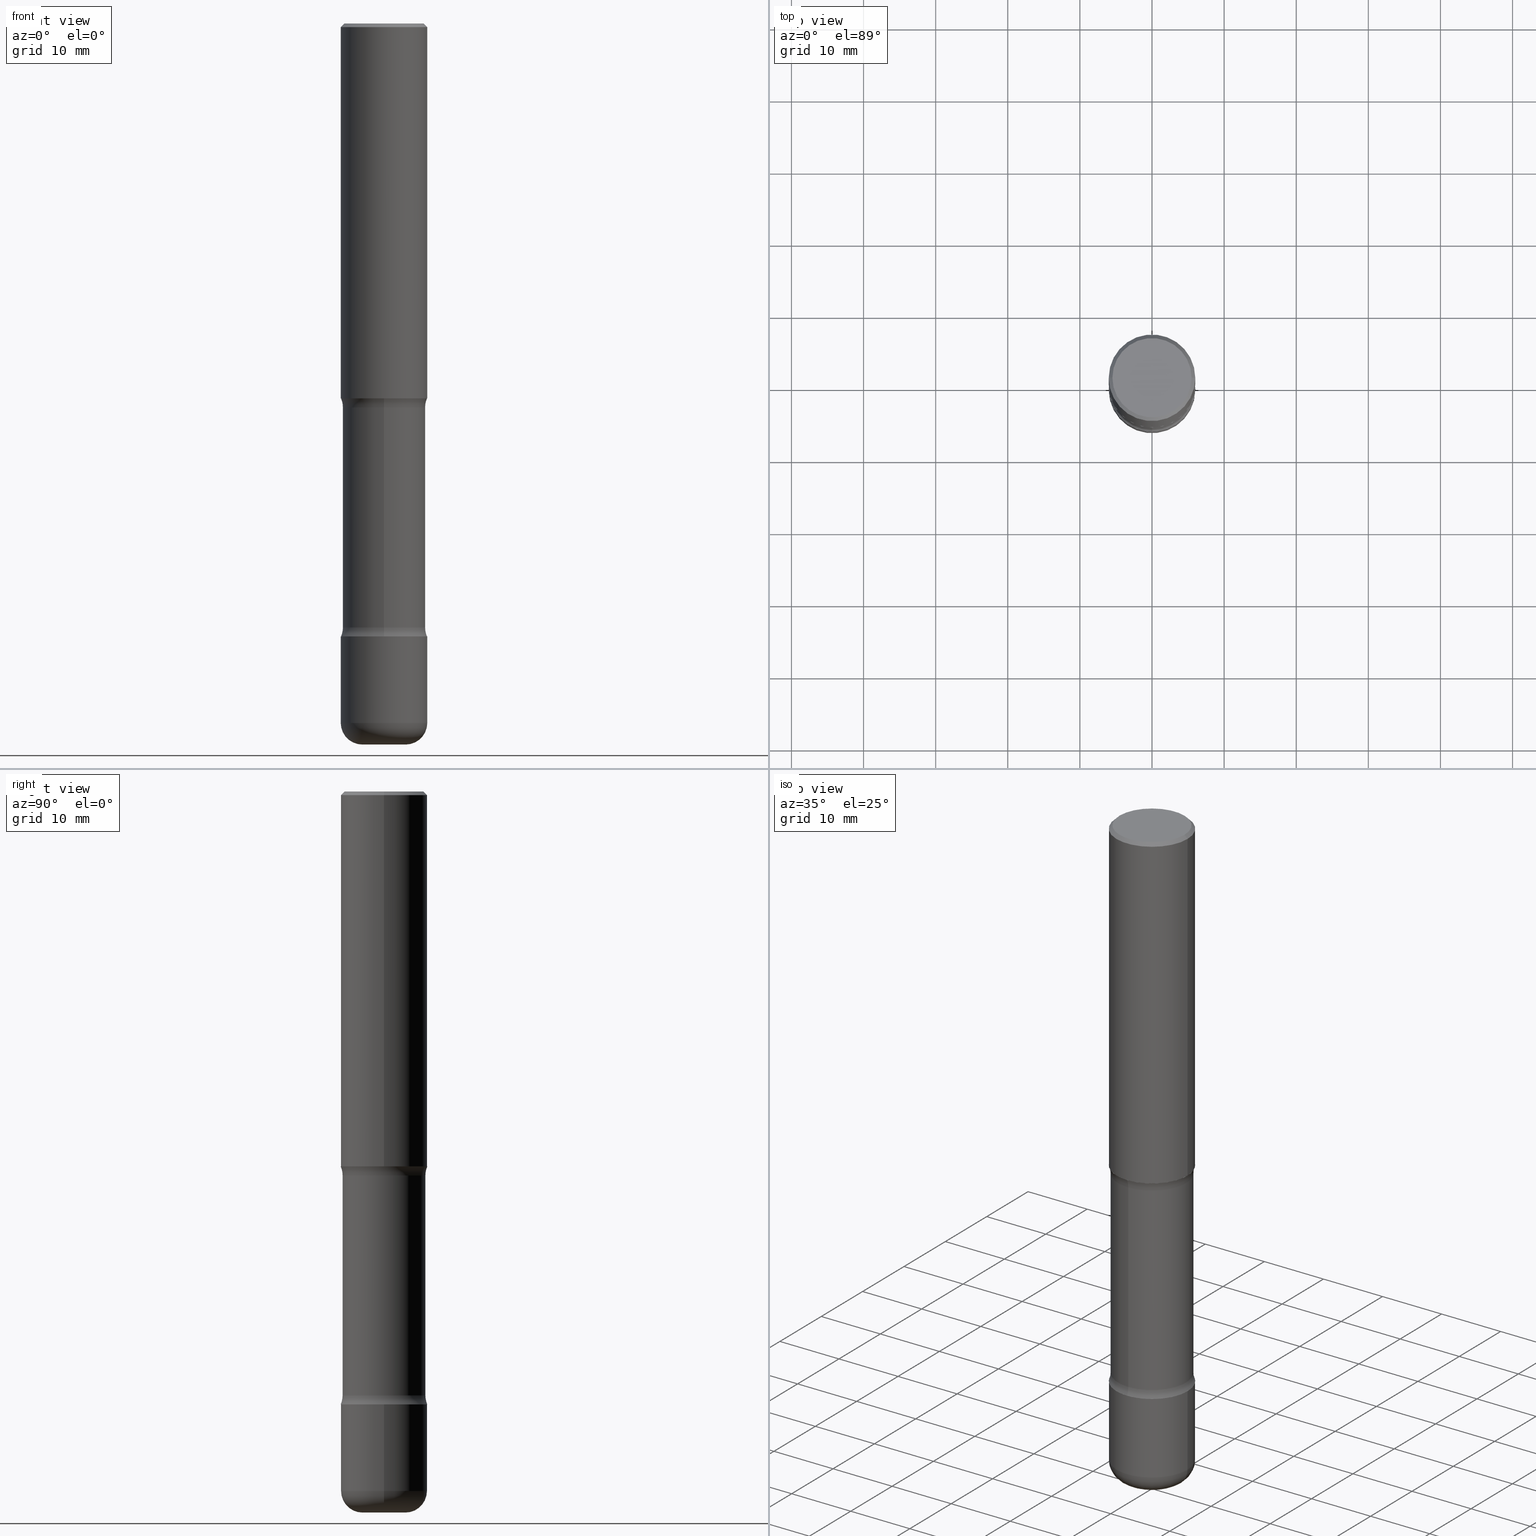
[diagram: canonical four-view strip — front | top / right | iso, engineering-drawing reading convention]
A machine part, canonical four-view strip (front | top / right | iso — engineering-drawing reading convention). The complete STEP part file that produces these views, byte-faithful:
ISO-10303-21;
HEADER;
FILE_DESCRIPTION (( 'STEP AP203' ),
    '1' );
FILE_NAME ('46931.STEP',
    '2024-03-02T05:56:28',
    ( '' ),
    ( '' ),
    'SwSTEP 2.0',
    'SolidWorks 2023',
    '' );
FILE_SCHEMA (( 'CONFIG_CONTROL_DESIGN' ));
ENDSEC;

DATA;
#1 = DIRECTION ( 'NONE',  ( -1.000000000000000000, 7.105427357601005014E-15, 0.000000000000000000 ) ) ;
#2 = ORIENTED_EDGE ( 'NONE', *, *, #386, .T. ) ;
#3 = EDGE_CURVE ( 'NONE', #112, #198, #415, .T. ) ;
#4 = DIRECTION ( 'NONE',  ( 2.207249558311628199E-29, -3.832624860395576133E-15, -1.000000000000000000 ) ) ;
#5 = ORIENTED_EDGE ( 'NONE', *, *, #257, .F. ) ;
#6 = CIRCLE ( 'NONE', #261, 0.2259999999999994236 ) ;
#7 = CIRCLE ( 'NONE', #188, 0.2362000000000005484 ) ;
#8 = LOCAL_TIME ( 0, 56, 28.00000000000000000, #509 ) ;
#9 = DIRECTION ( 'NONE',  ( 6.982962677686265922E-15, 1.000000000000000000, -3.469747663417777397E-15 ) ) ;
#10 = DIRECTION ( 'NONE',  ( -2.445468806185136597E-29, 3.491481338843145583E-15, 1.000000000000000000 ) ) ;
#11 = EDGE_CURVE ( 'NONE', #421, #22, #177, .T. ) ;
#12 = DIRECTION ( 'NONE',  ( -2.445468806185136597E-29, 3.491481338843145583E-15, 1.000000000000000000 ) ) ;
#13 = CARTESIAN_POINT ( 'NONE',  ( -2.408034797217727156E-15, -0.3510000000000115805, -3.296943352317405651 ) ) ;
#14 = CARTESIAN_POINT ( 'NONE',  ( 1.649375784469548787E-15, 0.2361999999999932764, -2.047200000000000575 ) ) ;
#15 = CARTESIAN_POINT ( 'NONE',  ( 9.487118402156788789E-29, -1.394744139485432957E-14, -3.937000000000000277 ) ) ;
#16 = ADVANCED_FACE ( 'NONE', ( #345 ), #205, .F. ) ;
#17 = CIRCLE ( 'NONE', #51, 0.2362000000000004096 ) ;
#18 = CIRCLE ( 'NONE', #360, 0.2362000000000005484 ) ;
#19 = CARTESIAN_POINT ( 'NONE',  ( 0.2362000000000004096, -1.333326893677419946E-14, -3.346399999999999597 ) ) ;
#20 = CARTESIAN_POINT ( 'NONE',  ( -1.620449627073556981E-15, -0.2362000000000121225, -3.346399999999999153 ) ) ;
#21 = EDGE_CURVE ( 'NONE', #90, #155, #113, .T. ) ;
#22 = VERTEX_POINT ( 'NONE', #339 ) ;
#23 = VECTOR ( 'NONE', #264, 39.37007874015748143 ) ;
#24 = CYLINDRICAL_SURFACE ( 'NONE', #53, 0.2362000000000004651 ) ;
#25 = CIRCLE ( 'NONE', #474, 0.2362000000000005207 ) ;
#26 = VERTEX_POINT ( 'NONE', #518 ) ;
#27 = EDGE_CURVE ( 'NONE', #496, #161, #419, .T. ) ;
#28 = ORIENTED_EDGE ( 'NONE', *, *, #192, .F. ) ;
#29 = EDGE_LOOP ( 'NONE', ( #68, #516, #200, #248 ) ) ;
#30 = CALENDAR_DATE ( 2024, 2, 3 ) ;
#31 = EDGE_CURVE ( 'NONE', #322, #159, #130, .T. ) ;
#32 = VERTEX_POINT ( 'NONE', #95 ) ;
#33 = CLOSED_SHELL ( 'NONE', ( #536, #100, #254, #477, #473, #531, #294, #522 ) ) ;
#34 = AXIS2_PLACEMENT_3D ( 'NONE', #553, #233, #35 ) ;
#35 = DIRECTION ( 'NONE',  ( 1.000000000000000000, 0.000000000000000000, 0.000000000000000000 ) ) ;
#36 = DIRECTION ( 'NONE',  ( 6.982962677686265922E-15, 1.000000000000000000, -3.832624860395576133E-15 ) ) ;
#37 = VERTEX_POINT ( 'NONE', #312 ) ;
#38 = PERSON_AND_ORGANIZATION_ROLE ( 'design_supplier' ) ;
#39 = CARTESIAN_POINT ( 'NONE',  ( 0.2362000000000002709, -1.690279253850500743E-15, -0.02000000000000006981 ) ) ;
#40 = ORIENTED_EDGE ( 'NONE', *, *, #448, .T. ) ;
#41 = APPROVAL_DATE_TIME ( #420, #395 ) ;
#42 = DIRECTION ( 'NONE',  ( 1.000000000000000000, -6.982962677686266711E-15, 4.876176775795935232E-29 ) ) ;
#43 = ORIENTED_EDGE ( 'NONE', *, *, #108, .T. ) ;
#44 = PERSON_AND_ORGANIZATION ( #467, #465 ) ;
#45 = CONICAL_SURFACE ( 'NONE', #289, 0.2362000000000002709, 0.7853981633974477239 ) ;
#46 = AXIS2_PLACEMENT_3D ( 'NONE', #468, #12, #42 ) ;
#47 = FACE_OUTER_BOUND ( 'NONE', #508, .T. ) ;
#48 = EDGE_LOOP ( 'NONE', ( #499, #367 ) ) ;
#49 = CARTESIAN_POINT ( 'NONE',  ( -0.2362000000000004651, 1.678301941865359944E-15, -1.161852468318210999E-29 ) ) ;
#50 = CARTESIAN_POINT ( 'NONE',  ( 4.175405657340879278E-46, -5.961372681521788801E-32, -1.707404996040164512E-17 ) ) ;
#51 = AXIS2_PLACEMENT_3D ( 'NONE', #532, #143, #534 ) ;
#52 = CC_DESIGN_DATE_AND_TIME_ASSIGNMENT ( #422, #202, ( #54 ) ) ;
#53 = AXIS2_PLACEMENT_3D ( 'NONE', #189, #543, #364 ) ;
#54 = SECURITY_CLASSIFICATION ( '', '', #458 ) ;
#55 = DIRECTION ( 'NONE',  ( 2.207249558311628480E-29, -3.832624860395576133E-15, -1.000000000000000000 ) ) ;
#56 = DIRECTION ( 'NONE',  ( 2.207249558311628480E-29, -3.832624860395576133E-15, -1.000000000000000000 ) ) ;
#57 = CARTESIAN_POINT ( 'NONE',  ( -1.585461087284944814E-15, -0.2260000000000063070, -2.096656647682591856 ) ) ;
#58 = CARTESIAN_POINT ( 'NONE',  ( 1.358887160832887654E-28, -3.943117431730549939E-15, -3.346400000000000041 ) ) ;
#59 = CIRCLE ( 'NONE', #378, 0.1250000000000000278 ) ;
#60 = AXIS2_PLACEMENT_3D ( 'NONE', #269, #313, #402 ) ;
#61 = DIRECTION ( 'NONE',  ( 1.000000000000000000, -6.860497997771530774E-15, 4.836621076406952606E-29 ) ) ;
#62 = CC_DESIGN_APPROVAL ( #267, ( #433 ) ) ;
#63 = CARTESIAN_POINT ( 'NONE',  ( 9.339000823940418668E-29, -1.333361808490808928E-14, -3.818900000000000183 ) ) ;
#64 = EDGE_LOOP ( 'NONE', ( #469, #228, #525, #472 ) ) ;
#65 = DIRECTION ( 'NONE',  ( 2.438088387897960049E-29, -3.491481338843145188E-15, -1.000000000000000000 ) ) ;
#66 = ADVANCED_FACE ( 'NONE', ( #139 ), #45, .T. ) ;
#67 = FACE_OUTER_BOUND ( 'NONE', #114, .T. ) ;
#68 = ORIENTED_EDGE ( 'NONE', *, *, #169, .F. ) ;
#69 = FACE_OUTER_BOUND ( 'NONE', #124, .T. ) ;
#70 = CIRCLE ( 'NONE', #196, 0.1181000000000005379 ) ;
#71 = CIRCLE ( 'NONE', #435, 0.2361999999999999933 ) ;
#72 = ORIENTED_EDGE ( 'NONE', *, *, #355, .T. ) ;
#73 = CARTESIAN_POINT ( 'NONE',  ( 9.487118402156788789E-29, -1.394744139485432957E-14, -3.937000000000000277 ) ) ;
#74 = ORIENTED_EDGE ( 'NONE', *, *, #108, .F. ) ;
#75 = ORIENTED_EDGE ( 'NONE', *, *, #134, .F. ) ;
#76 = CC_DESIGN_PERSON_AND_ORGANIZATION_ASSIGNMENT ( #505, #287, ( #334 ) ) ;
#77 = PERSON_AND_ORGANIZATION_ROLE ( 'classification_officer' ) ;
#78 = DIRECTION ( 'NONE',  ( 1.000000000000000000, -6.982962677686266711E-15, 4.876176775795935793E-29 ) ) ;
#79 = DIRECTION ( 'NONE',  ( -2.438088387897960049E-29, 3.491481338843145188E-15, 1.000000000000000000 ) ) ;
#80 = AXIS2_PLACEMENT_3D ( 'NONE', #436, #391, #296 ) ;
#81 = CALENDAR_DATE ( 2024, 2, 3 ) ;
#82 = CARTESIAN_POINT ( 'NONE',  ( 9.627810689950883669E-29, -1.374596203102546341E-14, -3.937000000000000277 ) ) ;
#83 = EDGE_CURVE ( 'NONE', #274, #476, #59, .T. ) ;
#84 = APPLICATION_CONTEXT ( 'configuration controlled 3d designs of mechanical parts and assemblies' ) ;
#85 = DIRECTION ( 'NONE',  ( 2.207249558311628480E-29, -3.832624860395576133E-15, -1.000000000000000000 ) ) ;
#86 = PERSON_AND_ORGANIZATION ( #467, #465 ) ;
#87 = ORIENTED_EDGE ( 'NONE', *, *, #495, .F. ) ;
#88 = PERSON_AND_ORGANIZATION ( #467, #465 ) ;
#89 = DIRECTION ( 'NONE',  ( 2.207249558311628480E-29, -3.832624860395576133E-15, -1.000000000000000000 ) ) ;
#90 = VERTEX_POINT ( 'NONE', #14 ) ;
#91 = CIRCLE ( 'NONE', #168, 0.2260000000000000342 ) ;
#92 = CARTESIAN_POINT ( 'NONE',  ( -0.2162000000000002531, 1.544631344304203944E-15, -1.707404996041232555E-17 ) ) ;
#93 = VERTEX_POINT ( 'NONE', #19 ) ;
#94 = CC_DESIGN_PERSON_AND_ORGANIZATION_ASSIGNMENT ( #559, #329, ( #507 ) ) ;
#95 = CARTESIAN_POINT ( 'NONE',  ( 1.649375784469580539E-15, 0.2361999999999887245, -3.346400000000000041 ) ) ;
#96 = FACE_OUTER_BOUND ( 'NONE', #504, .T. ) ;
#97 = AXIS2_PLACEMENT_3D ( 'NONE', #354, #55, #219 ) ;
#98 = CIRCLE ( 'NONE', #454, 0.1250000000000000000 ) ;
#99 = LINE ( 'NONE', #179, #500 ) ;
#100 = ADVANCED_FACE ( 'NONE', ( #183 ), #181, .F. ) ;
#101 = DIRECTION ( 'NONE',  ( -2.445468806185136597E-29, 3.491481338843145583E-15, 1.000000000000000000 ) ) ;
#102 = EDGE_CURVE ( 'NONE', #32, #274, #17, .T. ) ;
#103 = DIRECTION ( 'NONE',  ( 2.207249558311628480E-29, -3.832624860395576133E-15, -1.000000000000000000 ) ) ;
#104 = DIRECTION ( 'NONE',  ( -2.445468806185136597E-29, 3.491481338843145583E-15, 1.000000000000000000 ) ) ;
#105 = EDGE_CURVE ( 'NONE', #151, #26, #514, .T. ) ;
#106 = DIRECTION ( 'NONE',  ( 1.000000000000000000, -6.982962677686273810E-15, 0.000000000000000000 ) ) ;
#107 = CARTESIAN_POINT ( 'NONE',  ( 1.358887160832887654E-28, -3.943117431730549939E-15, -3.346400000000000041 ) ) ;
#108 = EDGE_CURVE ( 'NONE', #174, #496, #298, .T. ) ;
#109 = DIRECTION ( 'NONE',  ( 6.982962677686265133E-15, 1.000000000000000000, -4.835129192326128634E-15 ) ) ;
#110 = EDGE_LOOP ( 'NONE', ( #328, #407, #539, #176 ) ) ;
#111 = ADVANCED_FACE ( 'NONE', ( #220 ), #266, .F. ) ;
#112 = VERTEX_POINT ( 'NONE', #394 ) ;
#113 = CIRCLE ( 'NONE', #279, 0.2361999999999999933 ) ;
#114 = EDGE_LOOP ( 'NONE', ( #193, #277, #225, #241 ) ) ;
#115 = ORIENTED_EDGE ( 'NONE', *, *, #285, .F. ) ;
#116 = CARTESIAN_POINT ( 'NONE',  ( 0.000000000000000000, 0.000000000000000000, 0.000000000000000000 ) ) ;
#117 = PLANE ( 'NONE',  #492 ) ;
#118 = VERTEX_POINT ( 'NONE', #180 ) ;
#119 = COORDINATED_UNIVERSAL_TIME_OFFSET ( 5, 0, .BEHIND. ) ;
#120 = DIRECTION ( 'NONE',  ( 2.445468806185136597E-29, -3.491481338843145583E-15, -1.000000000000000000 ) ) ;
#121 = CARTESIAN_POINT ( 'NONE',  ( 5.315858186859473154E-29, -6.704546933678770212E-15, -2.047200000000000131 ) ) ;
#122 = AXIS2_PLACEMENT_3D ( 'NONE', #135, #89, #251 ) ;
#123 = AXIS2_PLACEMENT_3D ( 'NONE', #347, #431, #1 ) ;
#124 = EDGE_LOOP ( 'NONE', ( #544, #411, #456, #186 ) ) ;
#125 = DIRECTION ( 'NONE',  ( -6.982962677686265133E-15, -1.000000000000000000, 0.000000000000000000 ) ) ;
#126 = DATE_AND_TIME ( #30, #8 ) ;
#127 = ORIENTED_EDGE ( 'NONE', *, *, #311, .F. ) ;
#128 = APPROVAL_ROLE ( '' ) ;
#129 = CYLINDRICAL_SURFACE ( 'NONE', #46, 0.2362000000000004096 ) ;
#130 = LINE ( 'NONE', #49, #323 ) ;
#131 = CIRCLE ( 'NONE', #309, 0.1250000000000000278 ) ;
#132 = CARTESIAN_POINT ( 'NONE',  ( 0.2362000000000004651, -1.649375784469499483E-15, 1.151752954443002330E-29 ) ) ;
#133 = EDGE_LOOP ( 'NONE', ( #145, #115 ) ) ;
#134 = EDGE_CURVE ( 'NONE', #174, #476, #99, .T. ) ;
#135 = CARTESIAN_POINT ( 'NONE',  ( 5.413454317901524856E-29, -6.910660360295560245E-15, -2.096656647682592745 ) ) ;
#136 = DIRECTION ( 'NONE',  ( 1.000000000000000000, -6.982962677686266711E-15, 0.000000000000000000 ) ) ;
#137 = DIMENSIONAL_EXPONENTS ( 1.000000000000000000, 0.000000000000000000, 0.000000000000000000, 0.000000000000000000, 0.000000000000000000, 0.000000000000000000, 0.000000000000000000 ) ;
#138 = EDGE_CURVE ( 'NONE', #274, #32, #158, .T. ) ;
#139 = FACE_OUTER_BOUND ( 'NONE', #457, .T. ) ;
#140 = CIRCLE ( 'NONE', #207, 0.1250000000000000000 ) ;
#141 = CYLINDRICAL_SURFACE ( 'NONE', #379, 0.2259999999999997289 ) ;
#142 = DIRECTION ( 'NONE',  ( 2.207249558311628480E-29, -3.832624860395576133E-15, -1.000000000000000000 ) ) ;
#143 = DIRECTION ( 'NONE',  ( 2.207249558311628480E-29, -3.832624860395576133E-15, -1.000000000000000000 ) ) ;
#144 = ADVANCED_FACE ( 'NONE', ( #310 ), #491, .T. ) ;
#145 = ORIENTED_EDGE ( 'NONE', *, *, #175, .F. ) ;
#146 = DIRECTION ( 'NONE',  ( -1.000000000000000000, 6.982962677686265922E-15, -4.883557194083112901E-29 ) ) ;
#147 = VECTOR ( 'NONE', #303, 39.37007874015748143 ) ;
#148 = DIRECTION ( 'NONE',  ( -2.445468806185136597E-29, 3.491481338843145583E-15, 1.000000000000000000 ) ) ;
#149 = DIRECTION ( 'NONE',  ( 2.438088387897960049E-29, -3.491481338843145188E-15, -1.000000000000000000 ) ) ;
#150 = CC_DESIGN_DATE_AND_TIME_ASSIGNMENT ( #126, #210, ( #433 ) ) ;
#151 = VERTEX_POINT ( 'NONE', #265 ) ;
#152 = FACE_OUTER_BOUND ( 'NONE', #511, .T. ) ;
#153 = EDGE_LOOP ( 'NONE', ( #377, #28, #409, #214 ) ) ;
#154 =( CONVERSION_BASED_UNIT ( 'INCH', #545 ) LENGTH_UNIT ( ) NAMED_UNIT ( #137 ) );
#155 = VERTEX_POINT ( 'NONE', #349 ) ;
#156 = CARTESIAN_POINT ( 'NONE',  ( 2.451019899867960221E-15, 0.3509999999999884879, -3.296943352317407872 ) ) ;
#157 = FACE_OUTER_BOUND ( 'NONE', #363, .T. ) ;
#158 = CIRCLE ( 'NONE', #97, 0.2362000000000004096 ) ;
#159 = VERTEX_POINT ( 'NONE', #256 ) ;
#160 = CARTESIAN_POINT ( 'NONE',  ( 8.183516813017940998E-29, -1.168389315230470136E-14, -3.346399999999999597 ) ) ;
#161 = VERTEX_POINT ( 'NONE', #432 ) ;
#162 = LINE ( 'NONE', #327, #540 ) ;
#163 = DIRECTION ( 'NONE',  ( 1.000000000000000000, -6.982962677686265922E-15, 4.876176775795935793E-29 ) ) ;
#164 = DESIGN_CONTEXT ( 'detailed design', #84, 'design' ) ;
#165 = PERSON_AND_ORGANIZATION ( #467, #465 ) ;
#166 = FACE_OUTER_BOUND ( 'NONE', #429, .T. ) ;
#167 = ORIENTED_EDGE ( 'NONE', *, *, #11, .F. ) ;
#168 = AXIS2_PLACEMENT_3D ( 'NONE', #418, #493, #109 ) ;
#169 = EDGE_CURVE ( 'NONE', #22, #421, #250, .T. ) ;
#170 = DIRECTION ( 'NONE',  ( 6.982962677686265922E-15, 1.000000000000000000, -3.832624860395576133E-15 ) ) ;
#171 = CARTESIAN_POINT ( 'NONE',  ( 5.006363740022211680E-29, -7.147760596879688202E-15, -2.047200000000000131 ) ) ;
#172 = APPROVAL_DATE_TIME ( #414, #267 ) ;
#173 = DIRECTION ( 'NONE',  ( 1.000000000000000000, -6.982962677686268288E-15, 0.000000000000000000 ) ) ;
#174 = VERTEX_POINT ( 'NONE', #57 ) ;
#175 = EDGE_CURVE ( 'NONE', #118, #372, #70, .T. ) ;
#176 = ORIENTED_EDGE ( 'NONE', *, *, #234, .F. ) ;
#177 = CIRCLE ( 'NONE', #538, 0.2162000000000002531 ) ;
#178 = LOCAL_TIME ( 0, 56, 28.00000000000000000, #412 ) ;
#179 = CARTESIAN_POINT ( 'NONE',  ( -1.550472547496269144E-15, -0.2260000000000136622, -3.936999999999998945 ) ) ;
#180 = CARTESIAN_POINT ( 'NONE',  ( 0.1181000000000005379, -1.457064992326021799E-14, -3.937000000000000277 ) ) ;
#181 = TOROIDAL_SURFACE ( 'NONE', #387, 0.3510000000000000342, 0.1250000000000000278 ) ;
#182 = CIRCLE ( 'NONE', #80, 0.2260000000000000342 ) ;
#183 = FACE_OUTER_BOUND ( 'NONE', #236, .T. ) ;
#184 = DIRECTION ( 'NONE',  ( 2.207249558311628199E-29, -3.832624860395576133E-15, -1.000000000000000000 ) ) ;
#185 = DIRECTION ( 'NONE',  ( -1.000000000000000000, 6.982962677686266711E-15, 0.000000000000000000 ) ) ;
#186 = ORIENTED_EDGE ( 'NONE', *, *, #27, .F. ) ;
#187 = AXIS2_PLACEMENT_3D ( 'NONE', #521, #212, #209 ) ;
#188 = AXIS2_PLACEMENT_3D ( 'NONE', #416, #273, #376 ) ;
#189 = CARTESIAN_POINT ( 'NONE',  ( 0.000000000000000000, 0.000000000000000000, 0.000000000000000000 ) ) ;
#190 = ORIENTED_EDGE ( 'NONE', *, *, #102, .T. ) ;
#191 = DIRECTION ( 'NONE',  ( -6.982962677686265922E-15, -1.000000000000000000, 3.832624860395576133E-15 ) ) ;
#192 = EDGE_CURVE ( 'NONE', #496, #174, #6, .T. ) ;
#193 = ORIENTED_EDGE ( 'NONE', *, *, #83, .F. ) ;
#194 = ORIENTED_EDGE ( 'NONE', *, *, #393, .F. ) ;
#195 = APPLICATION_PROTOCOL_DEFINITION ( 'international standard', 'config_control_design', 1994, #84 ) ;
#196 = AXIS2_PLACEMENT_3D ( 'NONE', #216, #10, #348 ) ;
#197 = CIRCLE ( 'NONE', #346, 0.1180999999999999966 ) ;
#198 = VERTEX_POINT ( 'NONE', #221 ) ;
#199 = CARTESIAN_POINT ( 'NONE',  ( -0.2362000000000004096, 1.678301941865359550E-15, -1.161852468318210719E-29 ) ) ;
#200 = ORIENTED_EDGE ( 'NONE', *, *, #105, .T. ) ;
#201 = EDGE_CURVE ( 'NONE', #198, #151, #481, .T. ) ;
#202 = DATE_TIME_ROLE ( 'classification_date' ) ;
#203 = DIRECTION ( 'NONE',  ( 1.000000000000000000, -6.982962677686266711E-15, 0.000000000000000000 ) ) ;
#204 = CARTESIAN_POINT ( 'NONE',  ( 0.000000000000000000, 0.000000000000000000, 0.000000000000000000 ) ) ;
#205 = PLANE ( 'NONE',  #443 ) ;
#206 = SHAPE_DEFINITION_REPRESENTATION ( #239, #272 ) ;
#207 = AXIS2_PLACEMENT_3D ( 'NONE', #537, #238, #463 ) ;
#208 = DIRECTION ( 'NONE',  ( -6.982962677686266711E-15, -1.000000000000000000, 3.491481338843145583E-15 ) ) ;
#209 = DIRECTION ( 'NONE',  ( 1.000000000000000000, -6.982962677686269077E-15, 0.000000000000000000 ) ) ;
#210 = DATE_TIME_ROLE ( 'creation_date' ) ;
#211 = DIRECTION ( 'NONE',  ( -2.445468806185136597E-29, 3.491481338843145583E-15, 1.000000000000000000 ) ) ;
#212 = DIRECTION ( 'NONE',  ( -2.445468806185136597E-29, 3.491481338843145583E-15, 1.000000000000000000 ) ) ;
#213 = ADVANCED_FACE ( 'NONE', ( #96 ), #259, .T. ) ;
#214 = ORIENTED_EDGE ( 'NONE', *, *, #21, .T. ) ;
#215 = PLANE ( 'NONE',  #523 ) ;
#216 = CARTESIAN_POINT ( 'NONE',  ( 9.627810689950883669E-29, -1.374596203102546341E-14, -3.937000000000000277 ) ) ;
#217 = AXIS2_PLACEMENT_3D ( 'NONE', #530, #104, #136 ) ;
#218 = VECTOR ( 'NONE', #506, 39.37007874015748143 ) ;
#219 = DIRECTION ( 'NONE',  ( 6.982962677686265922E-15, 1.000000000000000000, -4.626330217890361448E-15 ) ) ;
#220 = FACE_OUTER_BOUND ( 'NONE', #417, .T. ) ;
#221 = CARTESIAN_POINT ( 'NONE',  ( 0.2362000000000005207, -8.797136381349187883E-15, -2.047200000000000131 ) ) ;
#222 = AXIS2_PLACEMENT_3D ( 'NONE', #107, #401, #191 ) ;
#223 = DIRECTION ( 'NONE',  ( 6.860497997771532351E-15, 1.000000000000000000, 0.000000000000000000 ) ) ;
#224 = DIRECTION ( 'NONE',  ( -2.445468806185136597E-29, 3.491481338843145583E-15, 1.000000000000000000 ) ) ;
#225 = ORIENTED_EDGE ( 'NONE', *, *, #336, .T. ) ;
#226 = DIRECTION ( 'NONE',  ( 2.207249558311628480E-29, -3.832624860395576133E-15, -1.000000000000000000 ) ) ;
#227 = EDGE_CURVE ( 'NONE', #174, #155, #140, .T. ) ;
#228 = ORIENTED_EDGE ( 'NONE', *, *, #3, .T. ) ;
#229 = CONICAL_SURFACE ( 'NONE', #370, 0.2362000000000002709, 0.7853981633974477239 ) ;
#230 = ORIENTED_EDGE ( 'NONE', *, *, #21, .F. ) ;
#231 = EDGE_CURVE ( 'NONE', #22, #151, #288, .T. ) ;
#232 = ORIENTED_EDGE ( 'NONE', *, *, #83, .T. ) ;
#233 = DIRECTION ( 'NONE',  ( 0.000000000000000000, 0.000000000000000000, 1.000000000000000000 ) ) ;
#234 = EDGE_CURVE ( 'NONE', #322, #37, #7, .T. ) ;
#235 = DIRECTION ( 'NONE',  ( 1.000000000000000000, -6.982962677686269077E-15, 0.000000000000000000 ) ) ;
#236 = EDGE_LOOP ( 'NONE', ( #460, #232, #2, #555 ) ) ;
#237 = COORDINATED_UNIVERSAL_TIME_OFFSET ( 5, 0, .BEHIND. ) ;
#238 = DIRECTION ( 'NONE',  ( 1.000000000000000000, -6.860497997771530774E-15, 4.836621076406952606E-29 ) ) ;
#239 = PRODUCT_DEFINITION_SHAPE ( 'NONE', 'NONE',  #433 ) ;
#240 = AXIS2_PLACEMENT_3D ( 'NONE', #527, #351, #203 ) ;
#241 = ORIENTED_EDGE ( 'NONE', *, *, #260, .T. ) ;
#242 = PERSON_AND_ORGANIZATION ( #467, #465 ) ;
#243 = DIRECTION ( 'NONE',  ( 1.000000000000000000, -6.982962677686264344E-15, 0.000000000000000000 ) ) ;
#244 = CC_DESIGN_PERSON_AND_ORGANIZATION_ASSIGNMENT ( #382, #38, ( #334 ) ) ;
#245 = DIRECTION ( 'NONE',  ( 6.982962677686265922E-15, 1.000000000000000000, -3.469747663417777397E-15 ) ) ;
#246 = CALENDAR_DATE ( 2024, 2, 3 ) ;
#247 = DIRECTION ( 'NONE',  ( 1.000000000000000000, -6.982962677686265133E-15, 4.883557194083112340E-29 ) ) ;
#248 = ORIENTED_EDGE ( 'NONE', *, *, #302, .F. ) ;
#249 = DATE_AND_TIME ( #295, #541 ) ;
#250 = CIRCLE ( 'NONE', #308, 0.2162000000000002531 ) ;
#251 = DIRECTION ( 'NONE',  ( 6.982962677686265922E-15, 1.000000000000000000, -3.832624860395576133E-15 ) ) ;
#252 = EDGE_LOOP ( 'NONE', ( #282, #297, #87, #194 ) ) ;
#253 = VECTOR ( 'NONE', #374, 39.37007874015748143 ) ;
#254 = ADVANCED_FACE ( 'NONE', ( #166 ), #290, .F. ) ;
#255 = ORIENTED_EDGE ( 'NONE', *, *, #27, .T. ) ;
#256 = CARTESIAN_POINT ( 'NONE',  ( -0.2362000000000004096, -1.083045367674103577E-14, -3.346399999999999597 ) ) ;
#257 = EDGE_CURVE ( 'NONE', #159, #93, #408, .T. ) ;
#258 = CARTESIAN_POINT ( 'NONE',  ( 0.1181000000000005379, -1.415830597714284228E-14, -3.818900000000000183 ) ) ;
#259 = CYLINDRICAL_SURFACE ( 'NONE', #453, 0.2362000000000004651 ) ;
#260 = EDGE_CURVE ( 'NONE', #161, #476, #91, .T. ) ;
#261 = AXIS2_PLACEMENT_3D ( 'NONE', #528, #56, #526 ) ;
#262 = AXIS2_PLACEMENT_3D ( 'NONE', #426, #211, #173 ) ;
#263 = CC_DESIGN_PERSON_AND_ORGANIZATION_ASSIGNMENT ( #86, #77, ( #54 ) ) ;
#264 = DIRECTION ( 'NONE',  ( -2.445468806185136877E-29, 3.491481338843145188E-15, 1.000000000000000000 ) ) ;
#265 = CARTESIAN_POINT ( 'NONE',  ( 0.2362000000000002709, -1.690279253850500743E-15, -0.02000000000000006981 ) ) ;
#266 = PLANE ( 'NONE',  #359 ) ;
#267 = APPROVAL ( #283, 'UNSPECIFIED' ) ;
#268 = AXIS2_PLACEMENT_3D ( 'NONE', #58, #65, #399 ) ;
#269 = CARTESIAN_POINT ( 'NONE',  ( 5.413454317901524856E-29, -6.910660360295560245E-15, -2.096656647682592745 ) ) ;
#270 = PLANE ( 'NONE',  #268 ) ;
#271 = ADVANCED_FACE ( 'NONE', ( #284 ), #229, .T. ) ;
#272 = ADVANCED_BREP_SHAPE_REPRESENTATION ( '46931', ( #533, #535, #344, #34 ), #424 ) ;
#273 = DIRECTION ( 'NONE',  ( -2.445468806185136597E-29, 3.491481338843145583E-15, 1.000000000000000000 ) ) ;
#274 = VERTEX_POINT ( 'NONE', #20 ) ;
#275 = DIRECTION ( 'NONE',  ( 6.982962677686265922E-15, 1.000000000000000000, -4.835129192326135734E-15 ) ) ;
#276 = EDGE_CURVE ( 'NONE', #112, #26, #333, .T. ) ;
#277 = ORIENTED_EDGE ( 'NONE', *, *, #102, .F. ) ;
#278 = DIRECTION ( 'NONE',  ( 2.207249558311628480E-29, -3.832624860395576133E-15, -1.000000000000000000 ) ) ;
#279 = AXIS2_PLACEMENT_3D ( 'NONE', #121, #85, #245 ) ;
#280 = AXIS2_PLACEMENT_3D ( 'NONE', #160, #554, #510 ) ;
#281 = ORIENTED_EDGE ( 'NONE', *, *, #201, .F. ) ;
#282 = ORIENTED_EDGE ( 'NONE', *, *, #311, .T. ) ;
#283 = APPROVAL_STATUS ( 'not_yet_approved' ) ;
#284 = FACE_OUTER_BOUND ( 'NONE', #29, .T. ) ;
#285 = EDGE_CURVE ( 'NONE', #372, #118, #501, .T. ) ;
#286 = ORIENTED_EDGE ( 'NONE', *, *, #490, .F. ) ;
#287 = PERSON_AND_ORGANIZATION_ROLE ( 'creator' ) ;
#288 = LINE ( 'NONE', #39, #218 ) ;
#289 = AXIS2_PLACEMENT_3D ( 'NONE', #350, #438, #396 ) ;
#290 = TOROIDAL_SURFACE ( 'NONE', #60, 0.3509999999999994791, 0.1250000000000000000 ) ;
#291 = DIRECTION ( 'NONE',  ( -2.445468806185136597E-29, 3.491481338843145583E-15, 1.000000000000000000 ) ) ;
#292 = UNCERTAINTY_MEASURE_WITH_UNIT (LENGTH_MEASURE( 1.000000000000000082E-05 ), #154, 'distance_accuracy_value', 'NONE');
#293 = ORIENTED_EDGE ( 'NONE', *, *, #386, .F. ) ;
#294 = ADVANCED_FACE ( 'NONE', ( #67 ), #560, .F. ) ;
#295 = CALENDAR_DATE ( 2024, 2, 3 ) ;
#296 = DIRECTION ( 'NONE',  ( 6.982962677686265133E-15, 1.000000000000000000, -4.835129192326128634E-15 ) ) ;
#297 = ORIENTED_EDGE ( 'NONE', *, *, #31, .T. ) ;
#298 = CIRCLE ( 'NONE', #397, 0.2259999999999994236 ) ;
#299 = DIRECTION ( 'NONE',  ( 2.207249558311627919E-29, -3.832624860395576133E-15, -1.000000000000000000 ) ) ;
#300 = DIRECTION ( 'NONE',  ( 1.000000000000000000, -6.982962677686266711E-15, 4.875778670202480222E-29 ) ) ;
#301 = CC_DESIGN_APPROVAL ( #430, ( #334 ) ) ;
#302 = EDGE_CURVE ( 'NONE', #421, #26, #162, .T. ) ;
#303 = DIRECTION ( 'NONE',  ( -2.445468806185136877E-29, 3.491481338843145188E-15, 1.000000000000000000 ) ) ;
#304 = DIRECTION ( 'NONE',  ( 6.982962677686265922E-15, 1.000000000000000000, -3.832624860395576133E-15 ) ) ;
#305 = DIRECTION ( 'NONE',  ( 2.438088387897960049E-29, -3.491481338843145188E-15, -1.000000000000000000 ) ) ;
#306 = CC_DESIGN_PERSON_AND_ORGANIZATION_ASSIGNMENT ( #44, #373, ( #433 ) ) ;
#307 = DIRECTION ( 'NONE',  ( -2.445468806185136597E-29, 3.491481338843145583E-15, 1.000000000000000000 ) ) ;
#308 = AXIS2_PLACEMENT_3D ( 'NONE', #50, #307, #441 ) ;
#309 = AXIS2_PLACEMENT_3D ( 'NONE', #156, #482, #125 ) ;
#310 = FACE_OUTER_BOUND ( 'NONE', #548, .T. ) ;
#311 = EDGE_CURVE ( 'NONE', #37, #322, #18, .T. ) ;
#312 = CARTESIAN_POINT ( 'NONE',  ( 0.2362000000000005484, -1.498299386937759054E-14, -3.818900000000000183 ) ) ;
#313 = DIRECTION ( 'NONE',  ( 2.207249558311628480E-29, -3.832624860395576133E-15, -1.000000000000000000 ) ) ;
#314 = VECTOR ( 'NONE', #4, 39.37007874015748143 ) ;
#315 = DIRECTION ( 'NONE',  ( -1.000000000000000000, 6.982962677686265922E-15, -4.876176775795935793E-29 ) ) ;
#316 = ADVANCED_FACE ( 'NONE', ( #357 ), #117, .T. ) ;
#317 = ORIENTED_EDGE ( 'NONE', *, *, #302, .T. ) ;
#318 = ADVANCED_FACE ( 'NONE', ( #330 ), #24, .T. ) ;
#319 = CYLINDRICAL_SURFACE ( 'NONE', #529, 0.2362000000000004096 ) ;
#320 = ORIENTED_EDGE ( 'NONE', *, *, #490, .T. ) ;
#321 =( NAMED_UNIT ( * ) PLANE_ANGLE_UNIT ( ) SI_UNIT ( $, .RADIAN. ) );
#322 = VERTEX_POINT ( 'NONE', #497 ) ;
#323 = VECTOR ( 'NONE', #488, 39.37007874015748143 ) ;
#324 = AXIS2_PLACEMENT_3D ( 'NONE', #520, #478, #247 ) ;
#325 = ORIENTED_EDGE ( 'NONE', *, *, #495, .T. ) ;
#326 = APPROVAL_ROLE ( '' ) ;
#327 = CARTESIAN_POINT ( 'NONE',  ( -0.2362000000000002709, 1.579546157692635002E-15, -0.02000000000000006981 ) ) ;
#328 = ORIENTED_EDGE ( 'NONE', *, *, #448, .F. ) ;
#329 = PERSON_AND_ORGANIZATION_ROLE ( 'design_owner' ) ;
#330 = FACE_OUTER_BOUND ( 'NONE', #252, .T. ) ;
#331 = ORIENTED_EDGE ( 'NONE', *, *, #105, .F. ) ;
#332 = APPROVAL_ROLE ( '' ) ;
#333 = LINE ( 'NONE', #199, #253 ) ;
#334 = PRODUCT_DEFINITION_FORMATION_WITH_SPECIFIED_SOURCE ( 'ANY', '', #507, .NOT_KNOWN. ) ;
#335 = ORIENTED_EDGE ( 'NONE', *, *, #138, .T. ) ;
#336 = EDGE_CURVE ( 'NONE', #32, #161, #131, .T. ) ;
#337 = APPLICATION_PROTOCOL_DEFINITION ( 'international standard', 'config_control_design', 1994, #353 ) ;
#338 = CARTESIAN_POINT ( 'NONE',  ( -1.585461087284921346E-15, -0.2260000000000115250, -3.296943352317405651 ) ) ;
#339 = CARTESIAN_POINT ( 'NONE',  ( 0.2162000000000002531, -1.586759460484353960E-15, -1.707404996039081677E-17 ) ) ;
#340 = MECHANICAL_CONTEXT ( 'NONE', #353, 'mechanical' ) ;
#341 = CARTESIAN_POINT ( 'NONE',  ( 1.578149565157146314E-15, 0.2259999999999925124, -2.096656647682593633 ) ) ;
#342 = ADVANCED_FACE ( 'NONE', ( #406 ), #319, .T. ) ;
#343 = ORIENTED_EDGE ( 'NONE', *, *, #227, .T. ) ;
#344 = MANIFOLD_SOLID_BREP ( 'Body-Move/Copy2[4]', #33 ) ;
#345 = FACE_OUTER_BOUND ( 'NONE', #48, .T. ) ;
#346 = AXIS2_PLACEMENT_3D ( 'NONE', #258, #208, #380 ) ;
#347 = CARTESIAN_POINT ( 'NONE',  ( -0.1181000000000005379, -1.249446711397540714E-14, -3.818900000000000183 ) ) ;
#348 = DIRECTION ( 'NONE',  ( 1.000000000000000000, -6.982962677686273810E-15, 0.000000000000000000 ) ) ;
#349 = CARTESIAN_POINT ( 'NONE',  ( -1.620449627073582225E-15, -0.2362000000000066546, -2.047199999999999243 ) ) ;
#350 = CARTESIAN_POINT ( 'NONE',  ( 4.890937612370289799E-31, -6.982962677686315028E-17, -0.02000000000000006981 ) ) ;
#351 = DIRECTION ( 'NONE',  ( -2.445468806185136597E-29, 3.491481338843145583E-15, 1.000000000000000000 ) ) ;
#352 = CARTESIAN_POINT ( 'NONE',  ( 8.062572123851672091E-29, -1.151121618983918756E-14, -3.296943352317406983 ) ) ;
#353 = APPLICATION_CONTEXT ( 'configuration controlled 3d designs of mechanical parts and assemblies' ) ;
#354 = CARTESIAN_POINT ( 'NONE',  ( 8.183516813017940998E-29, -1.168389315230470136E-14, -3.346399999999999597 ) ) ;
#355 = EDGE_CURVE ( 'NONE', #26, #151, #444, .T. ) ;
#356 = PLANE ( 'NONE',  #222 ) ;
#357 = FACE_OUTER_BOUND ( 'NONE', #133, .T. ) ;
#358 = ORIENTED_EDGE ( 'NONE', *, *, #542, .F. ) ;
#359 = AXIS2_PLACEMENT_3D ( 'NONE', #440, #305, #442 ) ;
#360 = AXIS2_PLACEMENT_3D ( 'NONE', #63, #224, #243 ) ;
#361 = TOROIDAL_SURFACE ( 'NONE', #324, 0.1181000000000005379, 0.1181000000000000105 ) ;
#362 = CARTESIAN_POINT ( 'NONE',  ( 4.890937612370289799E-31, -6.982962677686315028E-17, -0.02000000000000006981 ) ) ;
#363 = EDGE_LOOP ( 'NONE', ( #75, #43, #255, #293 ) ) ;
#364 = DIRECTION ( 'NONE',  ( 1.000000000000000000, -6.982962677686266711E-15, 4.876176775795935793E-29 ) ) ;
#365 =( LENGTH_UNIT ( ) NAMED_UNIT ( * ) SI_UNIT ( $, .METRE. ) );
#366 = ADVANCED_FACE ( 'NONE', ( #524 ), #361, .T. ) ;
#367 = ORIENTED_EDGE ( 'NONE', *, *, #3, .F. ) ;
#368 = ORIENTED_EDGE ( 'NONE', *, *, #234, .T. ) ;
#369 = APPROVAL_STATUS ( 'not_yet_approved' ) ;
#370 = AXIS2_PLACEMENT_3D ( 'NONE', #362, #120, #185 ) ;
#371 = LOCAL_TIME ( 0, 56, 28.00000000000000000, #237 ) ;
#372 = VERTEX_POINT ( 'NONE', #475 ) ;
#373 = PERSON_AND_ORGANIZATION_ROLE ( 'creator' ) ;
#374 = DIRECTION ( 'NONE',  ( -2.445468806185136877E-29, 3.491481338843145188E-15, 1.000000000000000000 ) ) ;
#375 = ORIENTED_EDGE ( 'NONE', *, *, #231, .F. ) ;
#376 = DIRECTION ( 'NONE',  ( 1.000000000000000000, -6.982962677686264344E-15, 0.000000000000000000 ) ) ;
#377 = ORIENTED_EDGE ( 'NONE', *, *, #227, .F. ) ;
#378 = AXIS2_PLACEMENT_3D ( 'NONE', #13, #61, #223 ) ;
#379 = AXIS2_PLACEMENT_3D ( 'NONE', #15, #103, #547 ) ;
#380 = DIRECTION ( 'NONE',  ( 1.000000000000000000, -6.982962677686273021E-15, 0.000000000000000000 ) ) ;
#381 = CARTESIAN_POINT ( 'NONE',  ( 4.175405657340879278E-46, -5.961372681521788801E-32, -1.707404996040164512E-17 ) ) ;
#382 = PERSON_AND_ORGANIZATION ( #467, #465 ) ;
#383 = LINE ( 'NONE', #132, #147 ) ;
#384 = CARTESIAN_POINT ( 'NONE',  ( 1.578149565157189110E-15, 0.2259999999999857956, -3.937000000000001165 ) ) ;
#385 = ORIENTED_EDGE ( 'NONE', *, *, #276, .T. ) ;
#386 = EDGE_CURVE ( 'NONE', #476, #161, #182, .T. ) ;
#387 = AXIS2_PLACEMENT_3D ( 'NONE', #352, #389, #304 ) ;
#388 = CARTESIAN_POINT ( 'NONE',  ( 5.315858186859473154E-29, -6.704546933678770212E-15, -2.047200000000000131 ) ) ;
#389 = DIRECTION ( 'NONE',  ( 2.207249558311628480E-29, -3.832624860395576133E-15, -1.000000000000000000 ) ) ;
#390 = CIRCLE ( 'NONE', #123, 0.1180999999999999966 ) ;
#391 = DIRECTION ( 'NONE',  ( 2.207249558311628480E-29, -3.832624860395576133E-15, -1.000000000000000000 ) ) ;
#392 = DIRECTION ( 'NONE',  ( 6.982962677686265922E-15, 1.000000000000000000, -3.626346894244606533E-15 ) ) ;
#393 = EDGE_CURVE ( 'NONE', #37, #93, #383, .T. ) ;
#394 = CARTESIAN_POINT ( 'NONE',  ( -0.2362000000000005207, -1.930493169962913045E-15, -2.047200000000000131 ) ) ;
#395 = APPROVAL ( #519, 'UNSPECIFIED' ) ;
#396 = DIRECTION ( 'NONE',  ( -1.000000000000000000, 6.982962677686266711E-15, 0.000000000000000000 ) ) ;
#397 = AXIS2_PLACEMENT_3D ( 'NONE', #400, #142, #392 ) ;
#398 = TOROIDAL_SURFACE ( 'NONE', #122, 0.3509999999999994791, 0.1250000000000000000 ) ;
#399 = DIRECTION ( 'NONE',  ( -1.000000000000000000, 6.982962677686265922E-15, -4.876176775795935793E-29 ) ) ;
#400 = CARTESIAN_POINT ( 'NONE',  ( 5.425021350612449526E-29, -6.894095711098900329E-15, -2.096656647682592745 ) ) ;
#401 = DIRECTION ( 'NONE',  ( -2.207249558311627919E-29, 3.832624860395576133E-15, 1.000000000000000000 ) ) ;
#402 = DIRECTION ( 'NONE',  ( 6.982962677686265922E-15, 1.000000000000000000, -3.832624860395576133E-15 ) ) ;
#403 = EDGE_LOOP ( 'NONE', ( #230, #286 ) ) ;
#404 = CARTESIAN_POINT ( 'NONE',  ( 2.451019899867929850E-15, 0.3509999999999925957, -2.096656647682594077 ) ) ;
#405 = CARTESIAN_POINT ( 'NONE',  ( 9.627810689950883669E-29, -1.374596203102546341E-14, -3.937000000000000277 ) ) ;
#406 = FACE_OUTER_BOUND ( 'NONE', #64, .T. ) ;
#407 = ORIENTED_EDGE ( 'NONE', *, *, #285, .T. ) ;
#408 = CIRCLE ( 'NONE', #280, 0.2362000000000004096 ) ;
#409 = ORIENTED_EDGE ( 'NONE', *, *, #542, .T. ) ;
#410 = DIRECTION ( 'NONE',  ( 1.000000000000000000, -6.982962677686266711E-15, 4.876176775795935232E-29 ) ) ;
#411 = ORIENTED_EDGE ( 'NONE', *, *, #134, .T. ) ;
#412 = COORDINATED_UNIVERSAL_TIME_OFFSET ( 5, 0, .BEHIND. ) ;
#413 = ORIENTED_EDGE ( 'NONE', *, *, #437, .F. ) ;
#414 = DATE_AND_TIME ( #81, #178 ) ;
#415 = CIRCLE ( 'NONE', #187, 0.2362000000000005207 ) ;
#416 = CARTESIAN_POINT ( 'NONE',  ( 9.339000823940418668E-29, -1.333361808490808928E-14, -3.818900000000000183 ) ) ;
#417 = EDGE_LOOP ( 'NONE', ( #466, #452 ) ) ;
#418 = CARTESIAN_POINT ( 'NONE',  ( 8.074353649264964625E-29, -1.149434437488457045E-14, -3.296943352317406983 ) ) ;
#419 = LINE ( 'NONE', #384, #314 ) ;
#420 = DATE_AND_TIME ( #246, #425 ) ;
#421 = VERTEX_POINT ( 'NONE', #92 ) ;
#422 = DATE_AND_TIME ( #461, #371 ) ;
#423 = ADVANCED_FACE ( 'NONE', ( #47 ), #129, .T. ) ;
#424 =( GEOMETRIC_REPRESENTATION_CONTEXT ( 3 ) GLOBAL_UNCERTAINTY_ASSIGNED_CONTEXT ( ( #292 ) ) GLOBAL_UNIT_ASSIGNED_CONTEXT ( ( #154, #321, #470 ) ) REPRESENTATION_CONTEXT ( 'NONE', 'WORKASPACE' ) );
#425 = LOCAL_TIME ( 0, 56, 28.00000000000000000, #513 ) ;
#426 = CARTESIAN_POINT ( 'NONE',  ( 8.183516813017940998E-29, -1.168389315230470136E-14, -3.346399999999999597 ) ) ;
#427 = EDGE_LOOP ( 'NONE', ( #190, #335 ) ) ;
#428 = CARTESIAN_POINT ( 'NONE',  ( 5.006363740022211680E-29, -7.147760596879688202E-15, -2.047200000000000131 ) ) ;
#429 = EDGE_LOOP ( 'NONE', ( #74, #343, #320, #358 ) ) ;
#430 = APPROVAL ( #369, 'UNSPECIFIED' ) ;
#431 = DIRECTION ( 'NONE',  ( 7.105427357601001859E-15, 1.000000000000000000, -3.491481338843145583E-15 ) ) ;
#432 = CARTESIAN_POINT ( 'NONE',  ( 1.578149565157176882E-15, 0.2259999999999885156, -3.296943352317407872 ) ) ;
#433 = PRODUCT_DEFINITION ( 'UNKNOWN', '', #334, #164 ) ;
#434 = CLOSED_SHELL ( 'NONE', ( #423, #271, #66, #111, #16, #342 ) ) ;
#435 = AXIS2_PLACEMENT_3D ( 'NONE', #388, #480, #9 ) ;
#436 = CARTESIAN_POINT ( 'NONE',  ( 8.074353649264964625E-29, -1.149434437488457045E-14, -3.296943352317406983 ) ) ;
#437 = EDGE_CURVE ( 'NONE', #118, #37, #197, .T. ) ;
#438 = DIRECTION ( 'NONE',  ( 2.445468806185136597E-29, -3.491481338843145583E-15, -1.000000000000000000 ) ) ;
#439 = CC_DESIGN_APPROVAL ( #395, ( #54 ) ) ;
#440 = CARTESIAN_POINT ( 'NONE',  ( 1.509716530915772493E-15, 0.2162000000000002531, -7.633952904380896635E-16 ) ) ;
#441 = DIRECTION ( 'NONE',  ( 1.000000000000000000, -6.982962677686266711E-15, 4.875778670202480222E-29 ) ) ;
#442 = DIRECTION ( 'NONE',  ( -1.000000000000000000, 6.982962677686265922E-15, -4.876176775795935793E-29 ) ) ;
#443 = AXIS2_PLACEMENT_3D ( 'NONE', #171, #79, #163 ) ;
#444 = CIRCLE ( 'NONE', #240, 0.2362000000000002709 ) ;
#445 = DIRECTION ( 'NONE',  ( -0.7071067811865471286, 2.468850131082252722E-15, -0.7071067811865479058 ) ) ;
#446 = FACE_OUTER_BOUND ( 'NONE', #427, .T. ) ;
#447 = DIRECTION ( 'NONE',  ( -2.445468806185136597E-29, 3.491481338843145583E-15, 1.000000000000000000 ) ) ;
#448 = EDGE_CURVE ( 'NONE', #372, #322, #390, .T. ) ;
#449 = ORIENTED_EDGE ( 'NONE', *, *, #175, .T. ) ;
#450 = CYLINDRICAL_SURFACE ( 'NONE', #549, 0.2259999999999997289 ) ;
#451 = CARTESIAN_POINT ( 'NONE',  ( 5.006363740022211680E-29, -7.147760596879688202E-15, -2.047200000000000131 ) ) ;
#452 = ORIENTED_EDGE ( 'NONE', *, *, #169, .T. ) ;
#453 = AXIS2_PLACEMENT_3D ( 'NONE', #204, #557, #78 ) ;
#454 = AXIS2_PLACEMENT_3D ( 'NONE', #404, #146, #502 ) ;
#455 = APPROVAL_PERSON_ORGANIZATION ( #88, #430, #326 ) ;
#456 = ORIENTED_EDGE ( 'NONE', *, *, #260, .F. ) ;
#457 = EDGE_LOOP ( 'NONE', ( #375, #167, #317, #72 ) ) ;
#458 = SECURITY_CLASSIFICATION_LEVEL ( 'unclassified' ) ;
#459 = CARTESIAN_POINT ( 'NONE',  ( 8.062572123851672091E-29, -1.151121618983918756E-14, -3.296943352317406983 ) ) ;
#460 = ORIENTED_EDGE ( 'NONE', *, *, #138, .F. ) ;
#461 = CALENDAR_DATE ( 2024, 2, 3 ) ;
#462 = CLOSED_SHELL ( 'NONE', ( #318, #144, #316, #366, #213, #556 ) ) ;
#463 = DIRECTION ( 'NONE',  ( 6.860497997771529985E-15, 1.000000000000000000, 0.000000000000000000 ) ) ;
#464 = AXIS2_PLACEMENT_3D ( 'NONE', #459, #226, #36 ) ;
#465 = ORGANIZATION ( 'UNSPECIFIED', 'UNSPECIFIED', '' ) ;
#466 = ORIENTED_EDGE ( 'NONE', *, *, #11, .T. ) ;
#467 = PERSON ( 'UNSPECIFIED', 'UNSPECIFIED', 'UNSPECIFIED', ('UNSPECIFIED'), ('UNSPECIFIED'), ('UNSPECIFIED') ) ;
#468 = CARTESIAN_POINT ( 'NONE',  ( 0.000000000000000000, 0.000000000000000000, 0.000000000000000000 ) ) ;
#469 = ORIENTED_EDGE ( 'NONE', *, *, #276, .F. ) ;
#470 =( NAMED_UNIT ( * ) SI_UNIT ( $, .STERADIAN. ) SOLID_ANGLE_UNIT ( ) );
#471 = FACE_OUTER_BOUND ( 'NONE', #153, .T. ) ;
#472 = ORIENTED_EDGE ( 'NONE', *, *, #355, .F. ) ;
#473 = ADVANCED_FACE ( 'NONE', ( #517 ), #215, .F. ) ;
#474 = AXIS2_PLACEMENT_3D ( 'NONE', #451, #489, #235 ) ;
#475 = CARTESIAN_POINT ( 'NONE',  ( -0.1181000000000005379, -1.228106360156775550E-14, -3.937000000000000277 ) ) ;
#476 = VERTEX_POINT ( 'NONE', #338 ) ;
#477 = ADVANCED_FACE ( 'NONE', ( #471 ), #398, .F. ) ;
#478 = DIRECTION ( 'NONE',  ( -2.445468806185136597E-29, 3.491481338843145583E-15, 1.000000000000000000 ) ) ;
#479 = DIRECTION ( 'NONE',  ( 1.000000000000000000, -6.982962677686265133E-15, 4.883557194083112340E-29 ) ) ;
#480 = DIRECTION ( 'NONE',  ( 2.207249558311628480E-29, -3.832624860395576133E-15, -1.000000000000000000 ) ) ;
#481 = LINE ( 'NONE', #485, #23 ) ;
#482 = DIRECTION ( 'NONE',  ( -1.000000000000000000, 6.982962677686265922E-15, -4.883557194083112901E-29 ) ) ;
#483 = AXIS2_PLACEMENT_3D ( 'NONE', #487, #101, #479 ) ;
#484 = AXIS2_PLACEMENT_3D ( 'NONE', #82, #447, #106 ) ;
#485 = CARTESIAN_POINT ( 'NONE',  ( 0.2362000000000004096, -1.649375784469499089E-15, 1.151752954443001910E-29 ) ) ;
#486 = CC_DESIGN_SECURITY_CLASSIFICATION ( #54, ( #334 ) ) ;
#487 = CARTESIAN_POINT ( 'NONE',  ( 9.339000823940418668E-29, -1.333361808490808928E-14, -3.818900000000000183 ) ) ;
#488 = DIRECTION ( 'NONE',  ( -2.445468806185136877E-29, 3.491481338843145188E-15, 1.000000000000000000 ) ) ;
#489 = DIRECTION ( 'NONE',  ( -2.445468806185136597E-29, 3.491481338843145583E-15, 1.000000000000000000 ) ) ;
#490 = EDGE_CURVE ( 'NONE', #155, #90, #71, .T. ) ;
#491 = TOROIDAL_SURFACE ( 'NONE', #483, 0.1181000000000005379, 0.1181000000000000105 ) ;
#492 = AXIS2_PLACEMENT_3D ( 'NONE', #405, #149, #315 ) ;
#493 = DIRECTION ( 'NONE',  ( 2.207249558311628480E-29, -3.832624860395576133E-15, -1.000000000000000000 ) ) ;
#494 = ORIENTED_EDGE ( 'NONE', *, *, #257, .T. ) ;
#495 = EDGE_CURVE ( 'NONE', #93, #159, #515, .T. ) ;
#496 = VERTEX_POINT ( 'NONE', #341 ) ;
#497 = CARTESIAN_POINT ( 'NONE',  ( -0.2362000000000005484, -1.165531614304272816E-14, -3.818900000000000183 ) ) ;
#498 = EDGE_CURVE ( 'NONE', #198, #112, #25, .T. ) ;
#499 = ORIENTED_EDGE ( 'NONE', *, *, #498, .F. ) ;
#500 = VECTOR ( 'NONE', #184, 39.37007874015748143 ) ;
#501 = CIRCLE ( 'NONE', #484, 0.1181000000000005379 ) ;
#502 = DIRECTION ( 'NONE',  ( -6.982962677686266711E-15, -1.000000000000000000, 0.000000000000000000 ) ) ;
#503 = APPROVAL_PERSON_ORGANIZATION ( #242, #395, #128 ) ;
#504 = EDGE_LOOP ( 'NONE', ( #558, #368, #552, #5 ) ) ;
#505 = PERSON_AND_ORGANIZATION ( #467, #465 ) ;
#506 = DIRECTION ( 'NONE',  ( 0.7071067811865471286, -7.319954787623254468E-15, -0.7071067811865479058 ) ) ;
#507 = PRODUCT ( '46931', '46931', '', ( #340 ) ) ;
#508 = EDGE_LOOP ( 'NONE', ( #546, #385, #331, #281 ) ) ;
#509 = COORDINATED_UNIVERSAL_TIME_OFFSET ( 5, 0, .BEHIND. ) ;
#510 = DIRECTION ( 'NONE',  ( 1.000000000000000000, -6.982962677686268288E-15, 0.000000000000000000 ) ) ;
#511 = EDGE_LOOP ( 'NONE', ( #325, #494 ) ) ;
#512 = PRODUCT_RELATED_PRODUCT_CATEGORY ( 'detail', '', ( #507 ) ) ;
#513 = COORDINATED_UNIVERSAL_TIME_OFFSET ( 5, 0, .BEHIND. ) ;
#514 = CIRCLE ( 'NONE', #217, 0.2362000000000002709 ) ;
#515 = CIRCLE ( 'NONE', #262, 0.2362000000000004096 ) ;
#516 = ORIENTED_EDGE ( 'NONE', *, *, #231, .T. ) ;
#517 = FACE_OUTER_BOUND ( 'NONE', #403, .T. ) ;
#518 = CARTESIAN_POINT ( 'NONE',  ( -0.2362000000000002709, 1.579546157692635002E-15, -0.02000000000000006981 ) ) ;
#519 = APPROVAL_STATUS ( 'not_yet_approved' ) ;
#520 = CARTESIAN_POINT ( 'NONE',  ( 9.339000823940418668E-29, -1.333361808490808928E-14, -3.818900000000000183 ) ) ;
#521 = CARTESIAN_POINT ( 'NONE',  ( 5.006363740022211680E-29, -7.147760596879688202E-15, -2.047200000000000131 ) ) ;
#522 = ADVANCED_FACE ( 'NONE', ( #157 ), #141, .T. ) ;
#523 = AXIS2_PLACEMENT_3D ( 'NONE', #428, #299, #170 ) ;
#524 = FACE_OUTER_BOUND ( 'NONE', #110, .T. ) ;
#525 = ORIENTED_EDGE ( 'NONE', *, *, #201, .T. ) ;
#526 = DIRECTION ( 'NONE',  ( 6.982962677686265922E-15, 1.000000000000000000, -3.626346894244606533E-15 ) ) ;
#527 = CARTESIAN_POINT ( 'NONE',  ( 4.890937612370289799E-31, -6.982962677686315028E-17, -0.02000000000000006981 ) ) ;
#528 = CARTESIAN_POINT ( 'NONE',  ( 5.425021350612449526E-29, -6.894095711098900329E-15, -2.096656647682592745 ) ) ;
#529 = AXIS2_PLACEMENT_3D ( 'NONE', #116, #148, #410 ) ;
#530 = CARTESIAN_POINT ( 'NONE',  ( 4.890937612370289799E-31, -6.982962677686315028E-17, -0.02000000000000006981 ) ) ;
#531 = ADVANCED_FACE ( 'NONE', ( #446 ), #356, .F. ) ;
#532 = CARTESIAN_POINT ( 'NONE',  ( 8.183516813017940998E-29, -1.168389315230470136E-14, -3.346399999999999597 ) ) ;
#533 = MANIFOLD_SOLID_BREP ( 'Body-Move/Copy2[1]', #462 ) ;
#534 = DIRECTION ( 'NONE',  ( 6.982962677686265922E-15, 1.000000000000000000, -4.626330217890361448E-15 ) ) ;
#535 = MANIFOLD_SOLID_BREP ( 'Body-Move/Copy2[2]', #434 ) ;
#536 = ADVANCED_FACE ( 'NONE', ( #69 ), #450, .T. ) ;
#537 = CARTESIAN_POINT ( 'NONE',  ( -2.408034797217749638E-15, -0.3510000000000063625, -2.096656647682591412 ) ) ;
#538 = AXIS2_PLACEMENT_3D ( 'NONE', #381, #291, #300 ) ;
#539 = ORIENTED_EDGE ( 'NONE', *, *, #437, .T. ) ;
#540 = VECTOR ( 'NONE', #445, 39.37007874015748143 ) ;
#541 = LOCAL_TIME ( 0, 56, 28.00000000000000000, #119 ) ;
#542 = EDGE_CURVE ( 'NONE', #496, #90, #98, .T. ) ;
#543 = DIRECTION ( 'NONE',  ( -2.445468806185136597E-29, 3.491481338843145583E-15, 1.000000000000000000 ) ) ;
#544 = ORIENTED_EDGE ( 'NONE', *, *, #192, .T. ) ;
#545 = LENGTH_MEASURE_WITH_UNIT ( LENGTH_MEASURE( 0.02539999999999999897 ), #365 );
#546 = ORIENTED_EDGE ( 'NONE', *, *, #498, .T. ) ;
#547 = DIRECTION ( 'NONE',  ( 6.982962677686265922E-15, 1.000000000000000000, -4.835129192326135734E-15 ) ) ;
#548 = EDGE_LOOP ( 'NONE', ( #449, #40, #127, #413 ) ) ;
#549 = AXIS2_PLACEMENT_3D ( 'NONE', #73, #278, #275 ) ;
#550 = APPROVAL_DATE_TIME ( #249, #430 ) ;
#551 = APPROVAL_PERSON_ORGANIZATION ( #165, #267, #332 ) ;
#552 = ORIENTED_EDGE ( 'NONE', *, *, #393, .T. ) ;
#553 = CARTESIAN_POINT ( 'NONE',  ( 0.000000000000000000, 0.000000000000000000, 0.000000000000000000 ) ) ;
#554 = DIRECTION ( 'NONE',  ( -2.445468806185136597E-29, 3.491481338843145583E-15, 1.000000000000000000 ) ) ;
#555 = ORIENTED_EDGE ( 'NONE', *, *, #336, .F. ) ;
#556 = ADVANCED_FACE ( 'NONE', ( #152 ), #270, .F. ) ;
#557 = DIRECTION ( 'NONE',  ( -2.445468806185136597E-29, 3.491481338843145583E-15, 1.000000000000000000 ) ) ;
#558 = ORIENTED_EDGE ( 'NONE', *, *, #31, .F. ) ;
#559 = PERSON_AND_ORGANIZATION ( #467, #465 ) ;
#560 = TOROIDAL_SURFACE ( 'NONE', #464, 0.3510000000000000342, 0.1250000000000000278 ) ;
ENDSEC;
END-ISO-10303-21;
